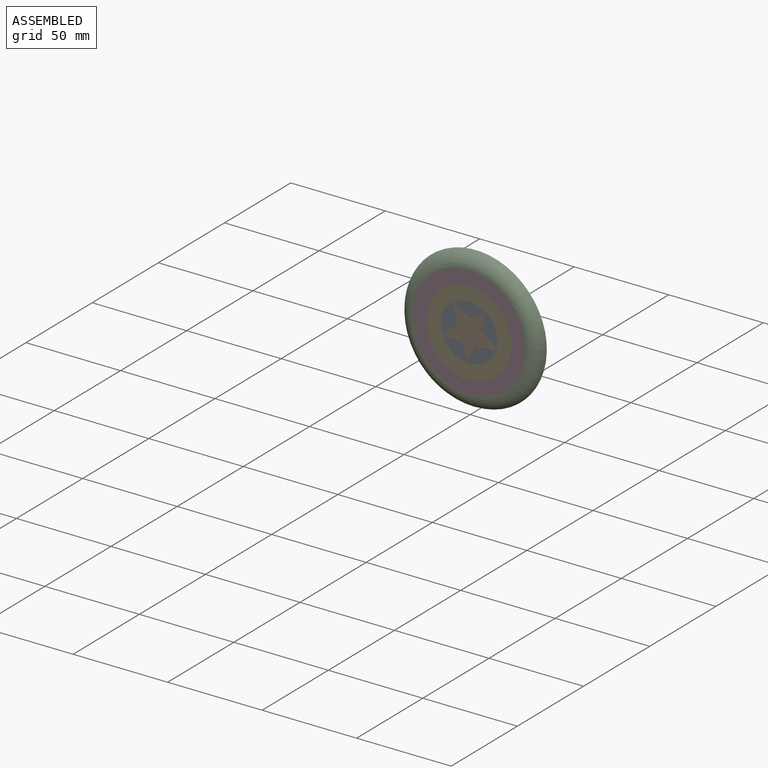
[diagram: assembled view]
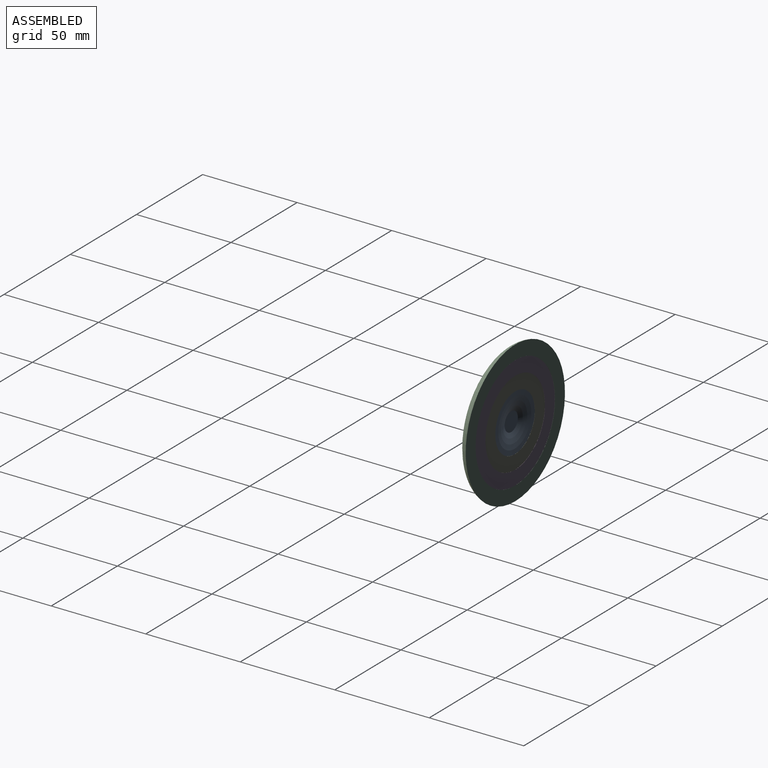
[diagram: assembled view, second angle]
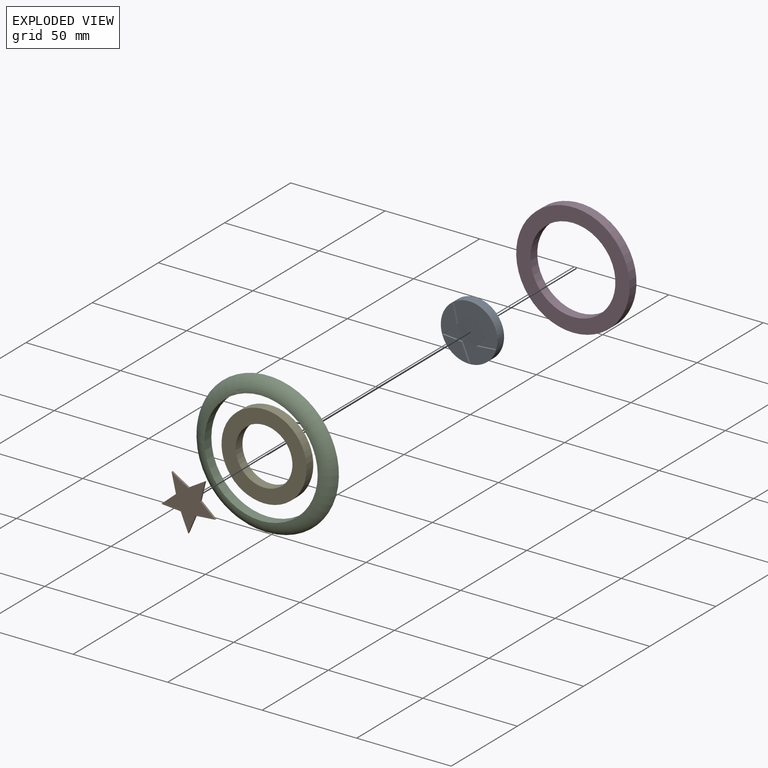
[diagram: exploded view]
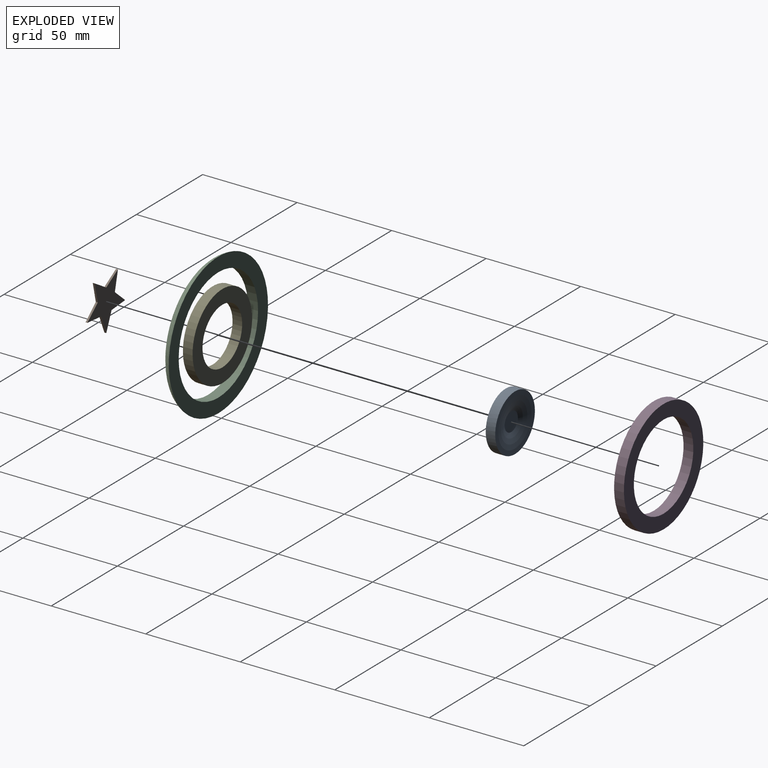
[diagram: exploded view, second angle]
ASSEMBLY  parts=5 mates=4
PART A: 19 faces, bbox 30x20x30 mm
  f0: plane 14.27x10.36mm, normal (0,-1,0), area 81.4mm2, adj f4,f8,f17
  f1: plane 14.27x10.36mm, normal (0,-1,0), area 81.4mm2, adj f4,f9,f10
  f2: plane 17.63x8.19mm, normal (0,-1,0), area 81.4mm2, adj f4,f13,f14
  f3: plane 16.77x8.53mm, normal (0,-1,0), area 81.4mm2, adj f4,f11,f12
  f4: cylinder r=15mm len=30mm, axis (0,1,0), area 471.2mm2, adj f0,f1,f2,f3,f5,f7
  f5: plane 16.77x8.53mm, normal (0,-1,0), area 81.4mm2, adj f4,f15,f16
  f6: plane 10x10mm, normal (0,1,0), area 78.5mm2, adj f7
  f7: torus R=15mm, axis (0,-1,0), area 640.7mm2, adj f4,f6
  f8: plane 9.51x4mm, normal (0.92,-0.02,0.39), area 9.3mm2, adj f0,f9,f17,f18
  f9: plane 9.51x4mm, normal (-0.92,-0.02,0.39), area 9.3mm2, adj f1,f8,f10,f18
  f10: plane 10.28x0.9mm, normal (-0.08,-0.02,1), area 9.3mm2, adj f1,f9,f11,f18
  f11: plane 7.81x6.74mm, normal (-0.65,-0.02,-0.76), area 9.3mm2, adj f3,f10,f12,f18
  f12: plane 10.04x2.36mm, normal (-0.97,-0.02,0.23), area 9.3mm2, adj f3,f11,f13,f18
  f13: plane 8.82x5.35mm, normal (0.52,-0.02,-0.86), area 9.3mm2, adj f2,f12,f14,f18
  f14: plane 8.82x5.35mm, normal (-0.52,-0.02,-0.86), area 9.3mm2, adj f2,f13,f15,f18
  f15: plane 10.04x2.36mm, normal (0.97,-0.02,0.23), area 9.3mm2, adj f5,f14,f16,f18
  f16: plane 7.81x6.74mm, normal (0.65,-0.02,-0.76), area 9.3mm2, adj f5,f15,f17,f18
  f17: plane 10.28x0.9mm, normal (0.08,-0.02,1), area 9.3mm2, adj f0,f8,f16,f18
  f18: plane 28.45x27.06mm, normal (0,-1,0), area 298.4mm2, adj f8,f9,f10,f11,f12,f13,f14,f15
PART B: 34 faces, bbox 28.5x1x27.1 mm
  f0: plane 8.82x5.33mm, normal (0.52,0,0.86), area 10.3mm2, adj f1,f9,f10,f11
  f1: plane 10.03x2.34mm, normal (-0.97,0,-0.23), area 10.3mm2, adj f0,f2,f10,f11
  f2: plane 7.79x6.74mm, normal (-0.65,0,0.76), area 10.3mm2, adj f1,f3,f10,f11
  f3: plane 10.27x1mm, normal (-0.08,0,-1), area 10.3mm2, adj f2,f4,f10,f11
  f4: plane 9.49x4mm, normal (-0.92,0,-0.39), area 10.3mm2, adj f3,f5,f10,f11
  f5: plane 9.49x4mm, normal (0.92,0,-0.39), area 10.3mm2, adj f4,f6,f10,f11
  f6: plane 10.27x1mm, normal (0.08,0,-1), area 10.3mm2, adj f5,f7,f10,f11
  f7: plane 7.79x6.74mm, normal (0.65,0,0.76), area 10.3mm2, adj f6,f8,f10,f11
  f8: plane 10.03x2.34mm, normal (0.97,0,-0.23), area 10.3mm2, adj f7,f9,f10,f11
  f9: plane 8.82x5.33mm, normal (-0.52,0,0.86), area 10.3mm2, adj f0,f8,f10,f11
  f10: plane 28.53x27.14mm, normal (0,-1,0), area 49.3mm2, adj f0,f1,f2,f3,f4,f5,f6,f7
  f11: plane 28.53x27.14mm, normal (0,1,0), area 300mm2, adj f0,f1,f2,f3,f4,f5,f6,f7
  f12: plane 9.17x2.14mm, normal (-0.97,0,0.23), area 0.9mm2, adj f10,f13,f31,f32
  f13: plane 8.06x4.87mm, normal (0.52,0,-0.86), area 0.9mm2, adj f10,f12,f14,f32
  f14: plane 8.06x4.87mm, normal (-0.52,0,-0.86), area 0.9mm2, adj f10,f13,f15,f32
  f15: plane 9.17x2.14mm, normal (0.97,0,0.23), area 0.9mm2, adj f10,f14,f16,f32
  f16: plane 7.12x6.16mm, normal (0.65,0,-0.76), area 0.9mm2, adj f10,f15,f17,f32
  f17: plane 9.38x0.8mm, normal (0.08,0,1), area 0.9mm2, adj f10,f16,f18,f32
  f18: plane 8.68x3.66mm, normal (0.92,0,0.39), area 0.9mm2, adj f10,f17,f19,f32
  f19: plane 8.68x3.66mm, normal (-0.92,0,0.39), area 0.9mm2, adj f10,f18,f20,f32
  f20: plane 9.38x0.8mm, normal (-0.08,0,1), area 0.9mm2, adj f10,f19,f31,f32
  f21: plane 9.09x2.12mm, normal (-0.97,0,-0.23), area 0.9mm2, adj f22,f30,f32,f33
  f22: plane 7.98x4.83mm, normal (0.52,0,0.86), area 0.9mm2, adj f21,f23,f32,f33
  f23: plane 7.98x4.83mm, normal (-0.52,0,0.86), area 0.9mm2, adj f22,f24,f32,f33
  f24: plane 9.09x2.12mm, normal (0.97,0,-0.23), area 0.9mm2, adj f23,f25,f32,f33
  f25: plane 7.06x6.1mm, normal (0.65,0,0.76), area 0.9mm2, adj f24,f26,f32,f33
  f26: plane 9.3x0.79mm, normal (0.08,0,-1), area 0.9mm2, adj f25,f27,f32,f33
  f27: plane 8.6x3.62mm, normal (0.92,0,-0.39), area 0.9mm2, adj f26,f28,f32,f33
  f28: plane 8.6x3.62mm, normal (-0.92,0,-0.39), area 0.9mm2, adj f27,f29,f32,f33
  f29: plane 9.3x0.79mm, normal (-0.08,0,-1), area 0.9mm2, adj f28,f30,f32,f33
  f30: plane 7.06x6.1mm, normal (-0.65,0,0.76), area 0.9mm2, adj f21,f29,f32,f33
  f31: plane 7.12x6.16mm, normal (-0.65,0,-0.76), area 0.9mm2, adj f10,f12,f20,f32
  f32: plane 26.08x24.81mm, normal (0,-1,0), area 4.7mm2, adj f12,f13,f14,f15,f16,f17,f18,f19
  f33: plane 25.84x24.57mm, normal (0,-1,0), area 246mm2, adj f21,f22,f23,f24,f25,f26,f27,f28
PART C: 4 faces, bbox 82.1x7.9x82.1 mm
  f0: cylinder r=30mm len=60mm, axis (0,1,0), area 999mm2, adj f1,f2
  f1: plane 60.08x60.08mm, normal (0,-1,0), area 7.6mm2, adj f0,f3
  f2: plane 75x75mm, normal (0,1,0), area 1590.4mm2, adj f0,f3
  f3: torus R=30.04mm, axis (0,1,0), area 2105.2mm2, adj f1,f2
PART D: 4 faces, bbox 60x5.2x60 mm
  f0: cylinder r=22.5mm len=45mm, axis (0,1,0), area 735.1mm2, adj f2,f3
  f1: cylinder r=30mm len=60mm, axis (0,1,0), area 980.2mm2, adj f2,f3
  f2: plane 60x60mm, normal (0,-1,0), area 1237mm2, adj f0,f1
  f3: plane 60x60mm, normal (0,1,0), area 1237mm2, adj f0,f1
PART E: 4 faces, bbox 45x5.1x45 mm
  f0: cylinder r=15mm len=30mm, axis (0,1,0), area 480.7mm2, adj f2,f3
  f1: cylinder r=22.5mm len=45mm, axis (0,1,0), area 721mm2, adj f2,f3
  f2: plane 45x45mm, normal (0,-1,0), area 883.6mm2, adj f0,f1
  f3: plane 45x45mm, normal (0,1,0), area 883.6mm2, adj f0,f1
PLACE A t=(-0.53,4.98,0.53)mm fixed
PLACE B t=(-0.53,0.93,0.53)mm
PLACE C t=(-0.53,5.13,0.53)mm
PLACE D t=(-0.53,5.08,0.53)mm
PLACE E t=(-0.53,5.03,0.53)mm
MATE slider B.f11 <-> A.f7  axis (0,1,0) through (-0.53,0.93,0.53)mm
MATE revolute C.f0 <-> D.f1  axis (0,1,0) through (-0.53,2.48,0.53)mm
MATE revolute D.f0 <-> E.f1  axis (0,1,0) through (-0.53,2.48,0.53)mm
MATE revolute E.f0 <-> A.f4  axis (0,1,0) through (-0.53,2.48,0.53)mm
